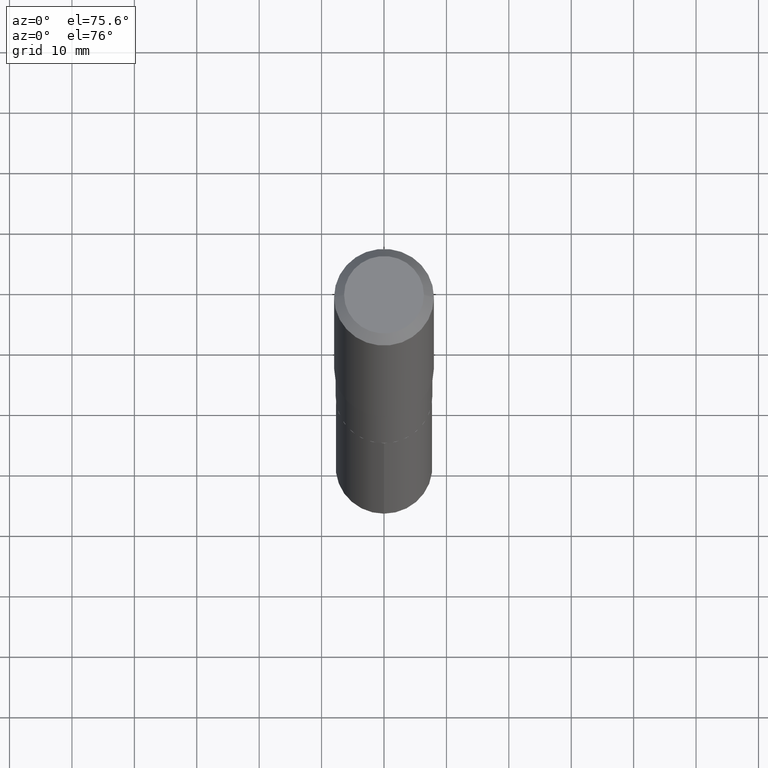
[diagram: clean part render]
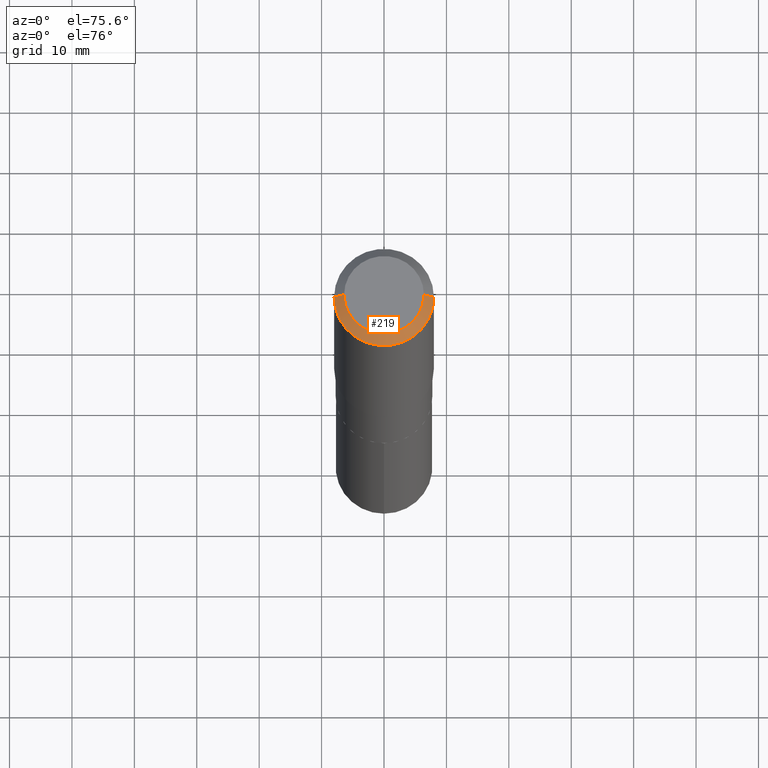
[diagram: same view with one face highlighted and labeled with its STEP entity id]
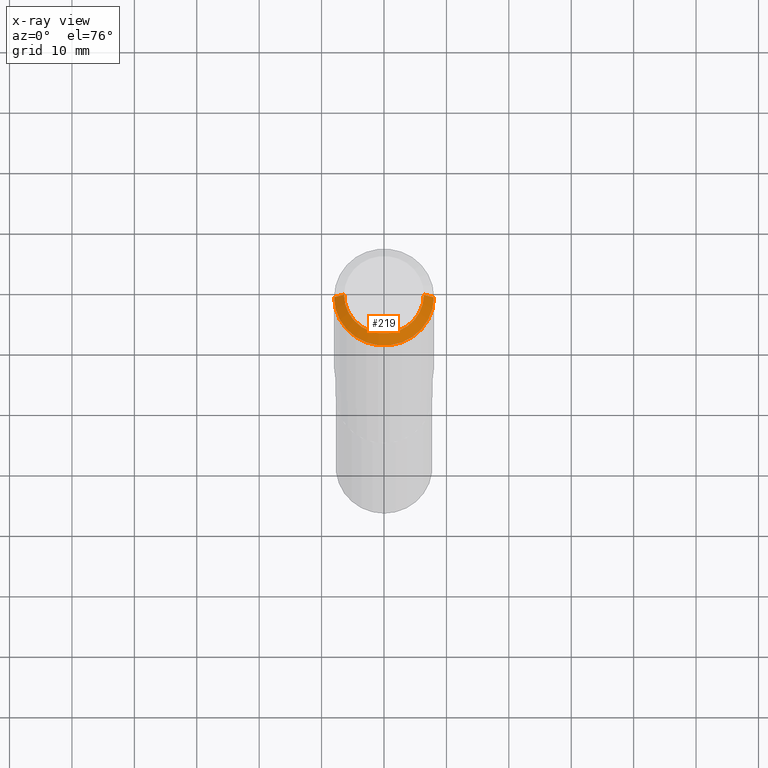
[diagram: x-ray of the same camera — body ghosted, the highlighted face saturated]
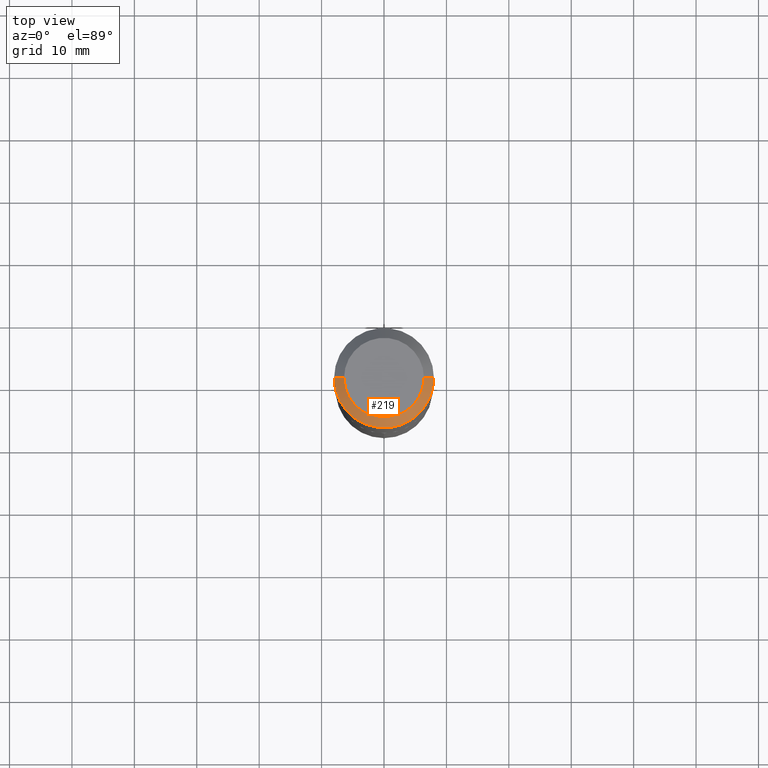
[diagram: same view with one face highlighted and labeled with its STEP entity id]
A machine part, auxiliary view. The second image highlights one B-rep face of the part: STEP entity #219.
The next image is the same camera in x-ray: the body ghosted, the highlighted face saturated — about 0% of this face is hidden behind the body in this view.
A second angle (top view) of the same face is appended — the face is thin or edge-on in the first view.
In plain terms, the highlighted conical surface has half-angle 45 deg.
Its self-contained STEP definition (entity closure, byte-faithful):
#5 = ORIENTED_EDGE ( 'NONE', *, *, #484, .T. ) ;
#17 = EDGE_CURVE ( 'NONE', #82, #35, #71, .T. ) ;
#35 = VERTEX_POINT ( 'NONE', #244 ) ;
#47 = VERTEX_POINT ( 'NONE', #212 ) ;
#57 = AXIS2_PLACEMENT_3D ( 'NONE', #168, #305, #468 ) ;
#67 = ORIENTED_EDGE ( 'NONE', *, *, #330, .T. ) ;
#71 = LINE ( 'NONE', #209, #227 ) ;
#82 = VERTEX_POINT ( 'NONE', #201 ) ;
#84 = ORIENTED_EDGE ( 'NONE', *, *, #17, .F. ) ;
#93 = EDGE_CURVE ( 'NONE', #47, #82, #118, .T. ) ;
#99 = CARTESIAN_POINT ( 'NONE',  ( -0.3149500000000000077, -1.131669549400917718E-15, -0.06299000000000036514 ) ) ;
#111 = AXIS2_PLACEMENT_3D ( 'NONE', #204, #246, #284 ) ;
#118 = CIRCLE ( 'NONE', #57, 0.2519600000000000173 ) ;
#142 = DIRECTION ( 'NONE',  ( 1.000000000000000000, -6.982962677686266711E-15, 0.000000000000000000 ) ) ;
#150 = ORIENTED_EDGE ( 'NONE', *, *, #93, .F. ) ;
#168 = CARTESIAN_POINT ( 'NONE',  ( -9.427742298522569579E-47, 1.346031739168368629E-32, 3.855188123715871501E-18 ) ) ;
#182 = FACE_OUTER_BOUND ( 'NONE', #414, .T. ) ;
#189 = VECTOR ( 'NONE', #408, 39.37007874015748143 ) ;
#201 = CARTESIAN_POINT ( 'NONE',  ( 0.2519600000000000173, -2.054606664725195058E-15, 3.855188123729206640E-18 ) ) ;
#204 = CARTESIAN_POINT ( 'NONE',  ( 1.540400801016026329E-30, -2.199284095337310135E-16, -0.06299000000000036514 ) ) ;
#209 = CARTESIAN_POINT ( 'NONE',  ( 0.3149500000000000077, -2.380642253931875190E-15, -0.06299000000000036514 ) ) ;
#212 = CARTESIAN_POINT ( 'NONE',  ( -0.2519600000000000173, 1.869391481036695286E-15, 3.855188123703182704E-18 ) ) ;
#214 = CIRCLE ( 'NONE', #240, 0.3149500000000000077 ) ;
#219 = ADVANCED_FACE ( 'NONE', ( #182 ), #331, .T. ) ;
#225 = CARTESIAN_POINT ( 'NONE',  ( -0.3149500000000000077, 1.979355685803558833E-15, -0.06299000000000036514 ) ) ;
#227 = VECTOR ( 'NONE', #285, 39.37007874015748143 ) ;
#240 = AXIS2_PLACEMENT_3D ( 'NONE', #313, #321, #142 ) ;
#244 = CARTESIAN_POINT ( 'NONE',  ( 0.3149500000000000077, -2.419212504871020909E-15, -0.06299000000000036514 ) ) ;
#246 = DIRECTION ( 'NONE',  ( 2.445468806185136597E-29, -3.491481338843145583E-15, -1.000000000000000000 ) ) ;
#284 = DIRECTION ( 'NONE',  ( -1.000000000000000000, 6.982962677686266711E-15, 0.000000000000000000 ) ) ;
#285 = DIRECTION ( 'NONE',  ( 0.7071067811865453523, -7.319954787623248157E-15, -0.7071067811865496822 ) ) ;
#305 = DIRECTION ( 'NONE',  ( -2.445468806185136597E-29, 3.491481338843145583E-15, 1.000000000000000000 ) ) ;
#313 = CARTESIAN_POINT ( 'NONE',  ( 1.540400801016026329E-30, -2.199284095337310135E-16, -0.06299000000000036514 ) ) ;
#321 = DIRECTION ( 'NONE',  ( -2.445468806185136597E-29, 3.491481338843145583E-15, 1.000000000000000000 ) ) ;
#330 = EDGE_CURVE ( 'NONE', #336, #35, #214, .T. ) ;
#331 = CONICAL_SURFACE ( 'NONE', #111, 0.3149500000000000077, 0.7853981633974452814 ) ;
#336 = VERTEX_POINT ( 'NONE', #99 ) ;
#408 = DIRECTION ( 'NONE',  ( -0.7071067811865453523, 2.468850131082234184E-15, -0.7071067811865496822 ) ) ;
#414 = EDGE_LOOP ( 'NONE', ( #84, #150, #5, #67 ) ) ;
#415 = LINE ( 'NONE', #225, #189 ) ;
#468 = DIRECTION ( 'NONE',  ( 1.000000000000000000, -6.982962677686266711E-15, 4.876115136096691995E-29 ) ) ;
#484 = EDGE_CURVE ( 'NONE', #47, #336, #415, .T. ) ;